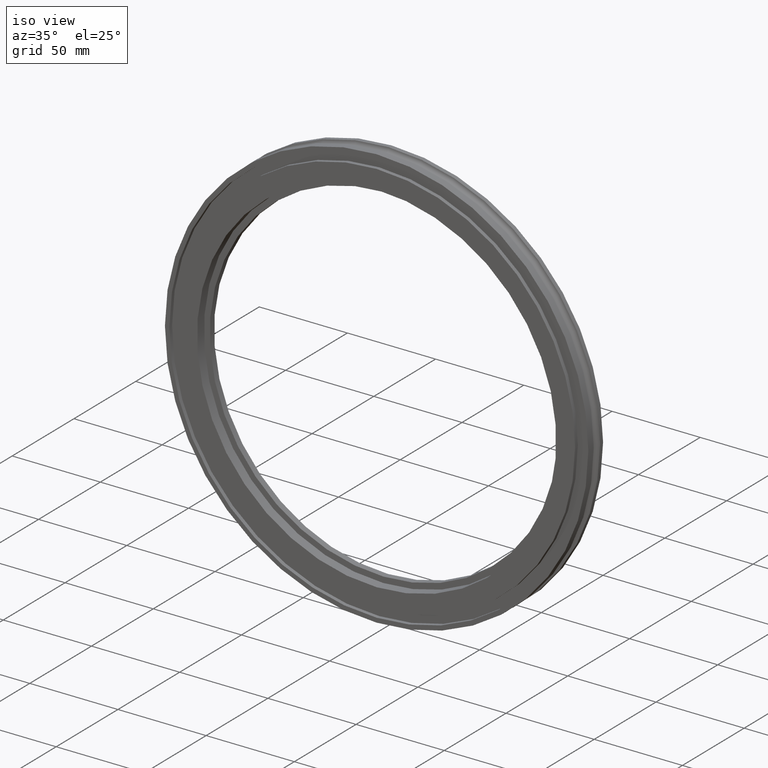
[diagram: clean part render]
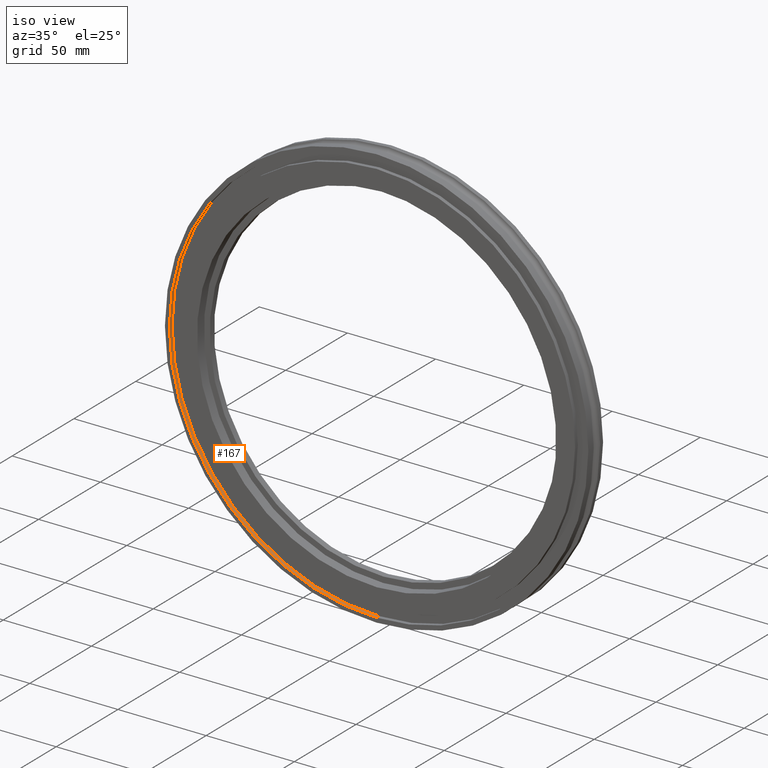
[diagram: same view with one face highlighted and labeled with its STEP entity id]
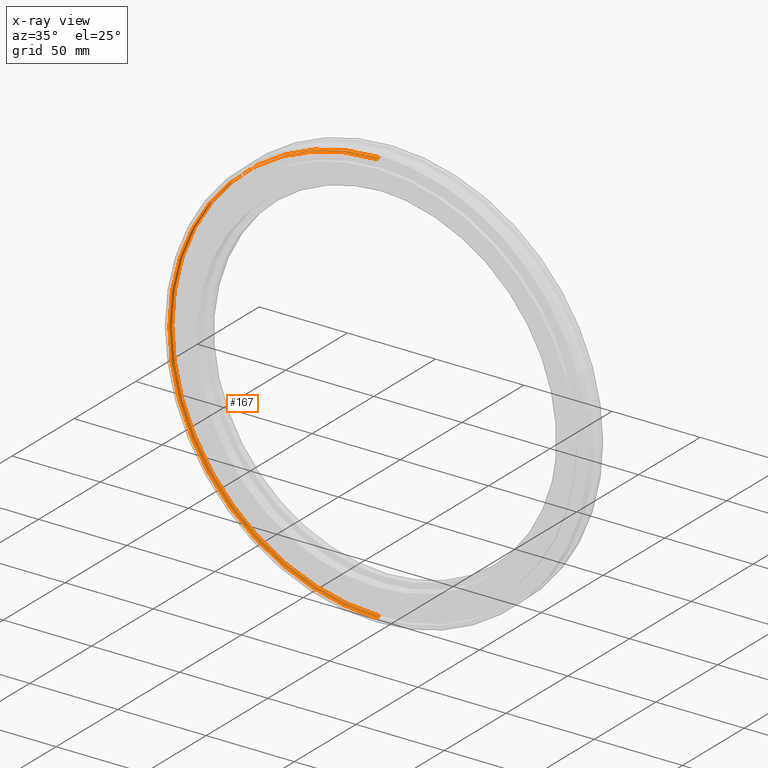
[diagram: x-ray of the same camera — body ghosted, the highlighted face saturated]
A machine part, iso view. The second image highlights one B-rep face of the part: STEP entity #167.
The next image is the same camera in x-ray: the body ghosted, the highlighted face saturated — about 0% of this face is hidden behind the body in this view.
In plain terms, the highlighted cylindrical surface (partial cylindrical patch) has radius 117.475 mm, axis along (-0, 1, -0).
Its self-contained STEP definition (entity closure, byte-faithful):
#37 = CARTESIAN_POINT ( 'NONE',  ( 0.000000000000000000, -0.3850000000000000089, 4.625000000000000000 ) ) ;
#44 = DIRECTION ( 'NONE',  ( -0.000000000000000000, 1.000000000000000000, -0.000000000000000000 ) ) ;
#48 = CARTESIAN_POINT ( 'NONE',  ( 0.000000000000000000, -0.3850000000000000089, 0.000000000000000000 ) ) ;
#80 = DIRECTION ( 'NONE',  ( -0.000000000000000000, 1.000000000000000000, -0.000000000000000000 ) ) ;
#95 = CARTESIAN_POINT ( 'NONE',  ( 5.663991446056508491E-16, -0.4699999999999999734, -4.625000000000000000 ) ) ;
#98 = AXIS2_PLACEMENT_3D ( 'NONE', #48, #221, #646 ) ;
#143 = CYLINDRICAL_SURFACE ( 'NONE', #563, 4.625000000000000000 ) ;
#157 = EDGE_CURVE ( 'NONE', #189, #374, #200, .T. ) ;
#167 = ADVANCED_FACE ( 'NONE', ( #569 ), #143, .F. ) ;
#175 = CARTESIAN_POINT ( 'NONE',  ( 0.000000000000000000, -0.4699999999999999734, 4.625000000000000000 ) ) ;
#189 = VERTEX_POINT ( 'NONE', #95 ) ;
#199 = CARTESIAN_POINT ( 'NONE',  ( 5.663991446056508491E-16, -0.3850000000000000089, -4.625000000000000000 ) ) ;
#200 = CIRCLE ( 'NONE', #350, 4.625000000000000000 ) ;
#221 = DIRECTION ( 'NONE',  ( -0.000000000000000000, 1.000000000000000000, -0.000000000000000000 ) ) ;
#236 = CIRCLE ( 'NONE', #98, 4.625000000000000000 ) ;
#239 = VECTOR ( 'NONE', #80, 39.37007874015748143 ) ;
#249 = VECTOR ( 'NONE', #673, 39.37007874015748143 ) ;
#259 = ORIENTED_EDGE ( 'NONE', *, *, #331, .T. ) ;
#290 = DIRECTION ( 'NONE',  ( -0.000000000000000000, 1.000000000000000000, -0.000000000000000000 ) ) ;
#331 = EDGE_CURVE ( 'NONE', #589, #597, #236, .T. ) ;
#341 = CARTESIAN_POINT ( 'NONE',  ( 0.000000000000000000, 0.000000000000000000, 0.000000000000000000 ) ) ;
#350 = AXIS2_PLACEMENT_3D ( 'NONE', #352, #44, #456 ) ;
#352 = CARTESIAN_POINT ( 'NONE',  ( 0.000000000000000000, -0.4699999999999999734, 0.000000000000000000 ) ) ;
#374 = VERTEX_POINT ( 'NONE', #175 ) ;
#409 = ORIENTED_EDGE ( 'NONE', *, *, #522, .T. ) ;
#417 = ORIENTED_EDGE ( 'NONE', *, *, #639, .F. ) ;
#422 = EDGE_LOOP ( 'NONE', ( #692, #409, #259, #417 ) ) ;
#453 = LINE ( 'NONE', #512, #249 ) ;
#456 = DIRECTION ( 'NONE',  ( 0.000000000000000000, 0.000000000000000000, 1.000000000000000000 ) ) ;
#512 = CARTESIAN_POINT ( 'NONE',  ( 0.000000000000000000, 0.000000000000000000, 4.625000000000000000 ) ) ;
#522 = EDGE_CURVE ( 'NONE', #189, #589, #613, .T. ) ;
#563 = AXIS2_PLACEMENT_3D ( 'NONE', #341, #290, #621 ) ;
#569 = FACE_OUTER_BOUND ( 'NONE', #422, .T. ) ;
#589 = VERTEX_POINT ( 'NONE', #199 ) ;
#597 = VERTEX_POINT ( 'NONE', #37 ) ;
#607 = CARTESIAN_POINT ( 'NONE',  ( 5.663991446056508491E-16, 0.000000000000000000, -4.625000000000000000 ) ) ;
#613 = LINE ( 'NONE', #607, #239 ) ;
#621 = DIRECTION ( 'NONE',  ( 0.000000000000000000, 0.000000000000000000, 1.000000000000000000 ) ) ;
#639 = EDGE_CURVE ( 'NONE', #374, #597, #453, .T. ) ;
#646 = DIRECTION ( 'NONE',  ( 0.000000000000000000, 0.000000000000000000, 1.000000000000000000 ) ) ;
#673 = DIRECTION ( 'NONE',  ( -0.000000000000000000, 1.000000000000000000, -0.000000000000000000 ) ) ;
#692 = ORIENTED_EDGE ( 'NONE', *, *, #157, .F. ) ;